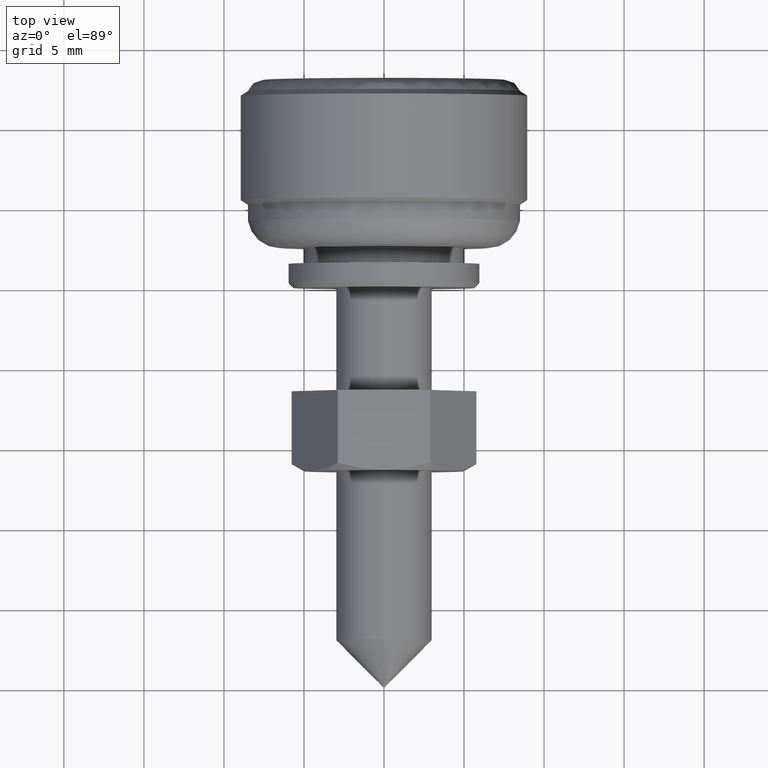
[diagram: clean part render]
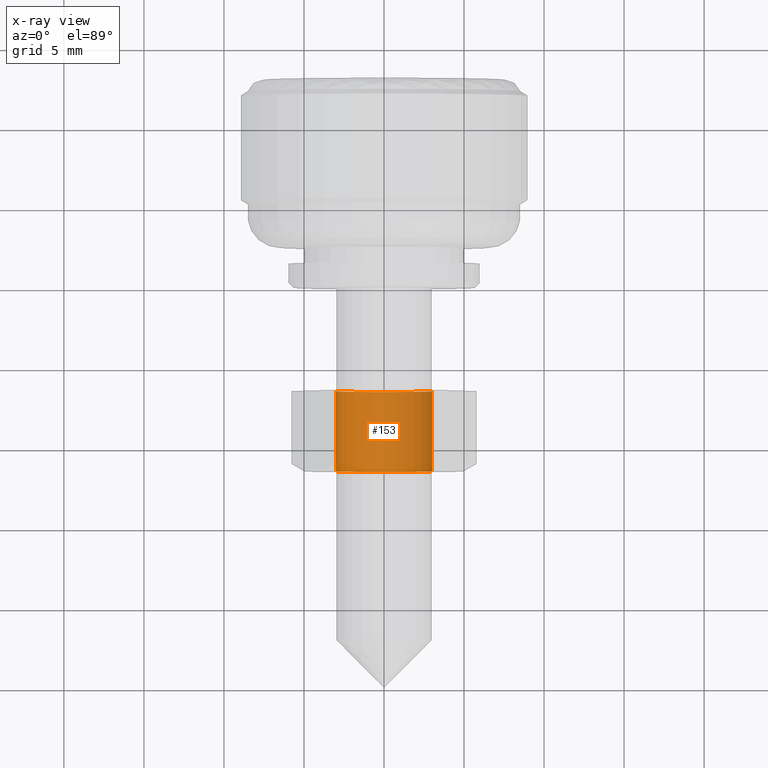
[diagram: x-ray — body ghosted, one internal face saturated and labeled with its STEP entity id]
A machine part, top view, then the same camera in x-ray: the body is ghosted and one INTERNAL B-rep face — a face not visible from any outside direction — is saturated and labeled: STEP entity #153.
In plain terms, the highlighted cylindrical surface (partial cylindrical patch) has radius 3 mm, axis along (0, 1, 0).
Its self-contained STEP definition (entity closure, byte-faithful):
#153=ADVANCED_FACE('',(#570),#569,.F.);
#569=CYLINDRICAL_SURFACE('',#936,3.00000000000E+00);
#570=FACE_OUTER_BOUND('',#937,.T.);
#933=CARTESIAN_POINT('',(0.00000000000E+00,0.00000000000E+00,0.00000000000E+00));
#934=DIRECTION('',(-0.00000000000E+00,0.00000000000E+00,-1.00000000000E+00));
#935=DIRECTION('',(-1.00000000000E+00,-0.00000000000E+00,-0.00000000000E+00));
#936=AXIS2_PLACEMENT_3D('',#933,#934,#935);
#937=EDGE_LOOP('',(#1108,#1109,#1110,#1111,#1112,#1113));
#1108=ORIENTED_EDGE('',*,*,#1197,.F.);
#1109=ORIENTED_EDGE('',*,*,#1199,.F.);
#1110=ORIENTED_EDGE('',*,*,#1200,.F.);
#1111=ORIENTED_EDGE('',*,*,#1178,.T.);
#1112=ORIENTED_EDGE('',*,*,#1180,.T.);
#1113=ORIENTED_EDGE('',*,*,#1201,.T.);
#1178=EDGE_CURVE('',#1625,#1626,#1627,.T.);
#1180=EDGE_CURVE('',#1626,#1633,#1640,.T.);
#1197=EDGE_CURVE('',#1750,#1751,#1752,.T.);
#1199=EDGE_CURVE('',#1758,#1750,#1765,.T.);
#1200=EDGE_CURVE('',#1625,#1758,#1771,.T.);
#1201=EDGE_CURVE('',#1633,#1751,#1777,.T.);
#1625=VERTEX_POINT('',#2059);
#1626=VERTEX_POINT('',#2060);
#1627=CIRCLE('',#2064,3.00000000000E+00);
#1633=VERTEX_POINT('',#2065);
#1640=CIRCLE('',#2073,3.00000000000E+00);
#1750=VERTEX_POINT('',#2140);
#1751=VERTEX_POINT('',#2141);
#1752=CIRCLE('',#2145,3.00000000000E+00);
#1758=VERTEX_POINT('',#2146);
#1765=CIRCLE('',#2154,3.00000000000E+00);
#1771=(BOUNDED_CURVE() B_SPLINE_CURVE(1,(#2155,#2156),.UNSPECIFIED.,.F.,.F.) B_SPLINE_CURVE_WITH_KNOTS((2,2),(8.33333283663E-02,9.16666663731E-01),.UNSPECIFIED.) CURVE() GEOMETRIC_REPRESENTATION_ITEM() RATIONAL_B_SPLINE_CURVE((1.00000000000E+00,1.00000000000E+00)) REPRESENTATION_ITEM('') );
#1777=(BOUNDED_CURVE() B_SPLINE_CURVE(1,(#2157,#2158),.UNSPECIFIED.,.F.,.F.) B_SPLINE_CURVE_WITH_KNOTS((2,2),(8.33333333333E-02,9.16666666667E-01),.UNSPECIFIED.) CURVE() GEOMETRIC_REPRESENTATION_ITEM() RATIONAL_B_SPLINE_CURVE((7.50000000000E-01,7.50000000000E-01)) REPRESENTATION_ITEM('') );
#2059=CARTESIAN_POINT('',(-3.00000000000E+00,-1.19570834577E-11,5.00000000000E+00));
#2060=CARTESIAN_POINT('',(0.00000000000E+00,-3.00000000000E+00,5.00000000000E+00));
#2061=CARTESIAN_POINT('',(0.00000000000E+00,0.00000000000E+00,5.00000000000E+00));
#2062=DIRECTION('',(0.00000000000E+00,0.00000000000E+00,1.00000000000E+00));
#2063=DIRECTION('',(-1.22460635382E-16,-1.00000000000E+00,0.00000000000E+00));
#2064=AXIS2_PLACEMENT_3D('',#2061,#2062,#2063);
#2065=CARTESIAN_POINT('',(2.99999998384E+00,3.11342264080E-04,5.00000000000E+00));
#2070=CARTESIAN_POINT('',(0.00000000000E+00,0.00000000000E+00,5.00000000000E+00));
#2071=DIRECTION('',(0.00000000000E+00,0.00000000000E+00,1.00000000000E+00));
#2072=DIRECTION('',(-1.22460635382E-16,-1.00000000000E+00,0.00000000000E+00));
#2073=AXIS2_PLACEMENT_3D('',#2070,#2071,#2072);
#2140=CARTESIAN_POINT('',(0.00000000000E+00,-3.00000000000E+00,0.00000000000E+00));
#2141=CARTESIAN_POINT('',(2.99999998384E+00,3.11342264080E-04,0.00000000000E+00));
#2142=CARTESIAN_POINT('',(0.00000000000E+00,0.00000000000E+00,0.00000000000E+00));
#2143=DIRECTION('',(0.00000000000E+00,0.00000000000E+00,1.00000000000E+00));
#2144=DIRECTION('',(-1.22460635382E-16,-1.00000000000E+00,0.00000000000E+00));
#2145=AXIS2_PLACEMENT_3D('',#2142,#2143,#2144);
#2146=CARTESIAN_POINT('',(-3.00000000000E+00,-1.19570834577E-11,0.00000000000E+00));
#2151=CARTESIAN_POINT('',(0.00000000000E+00,0.00000000000E+00,0.00000000000E+00));
#2152=DIRECTION('',(0.00000000000E+00,0.00000000000E+00,1.00000000000E+00));
#2153=DIRECTION('',(-1.22460635382E-16,-1.00000000000E+00,0.00000000000E+00));
#2154=AXIS2_PLACEMENT_3D('',#2151,#2152,#2153);
#2155=CARTESIAN_POINT('',(-3.00000000000E+00,0.00000000000E+00,5.00000002980E+00));
#2156=CARTESIAN_POINT('',(-3.00000000000E+00,0.00000000000E+00,1.76110085959E-08));
#2157=CARTESIAN_POINT('',(3.00000000000E+00,-1.48029736617E-16,5.00000000000E+00));
#2158=CARTESIAN_POINT('',(3.00000000000E+00,-1.48029736617E-16,8.88178419700E-16));